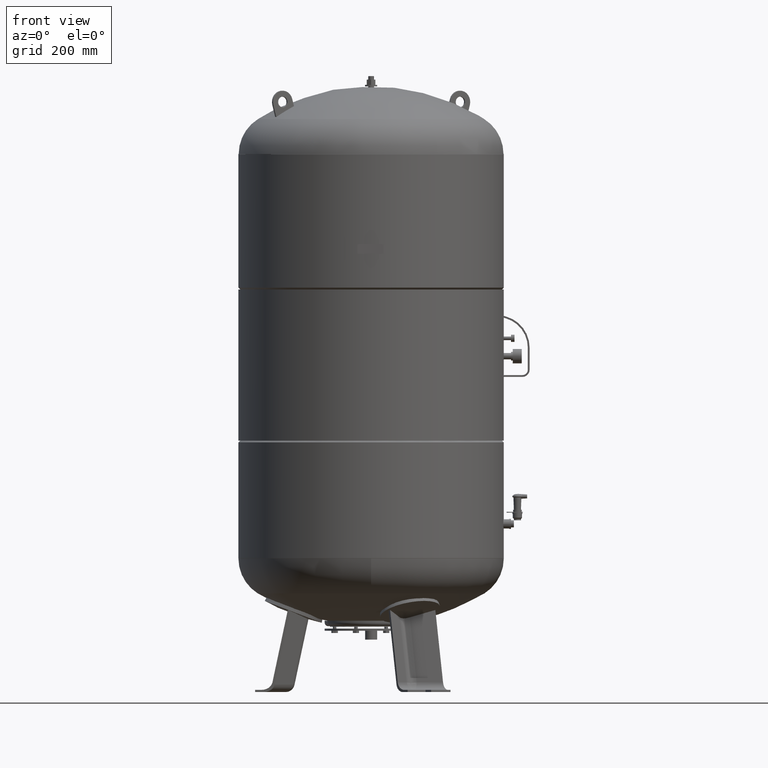
[diagram: clean part render]
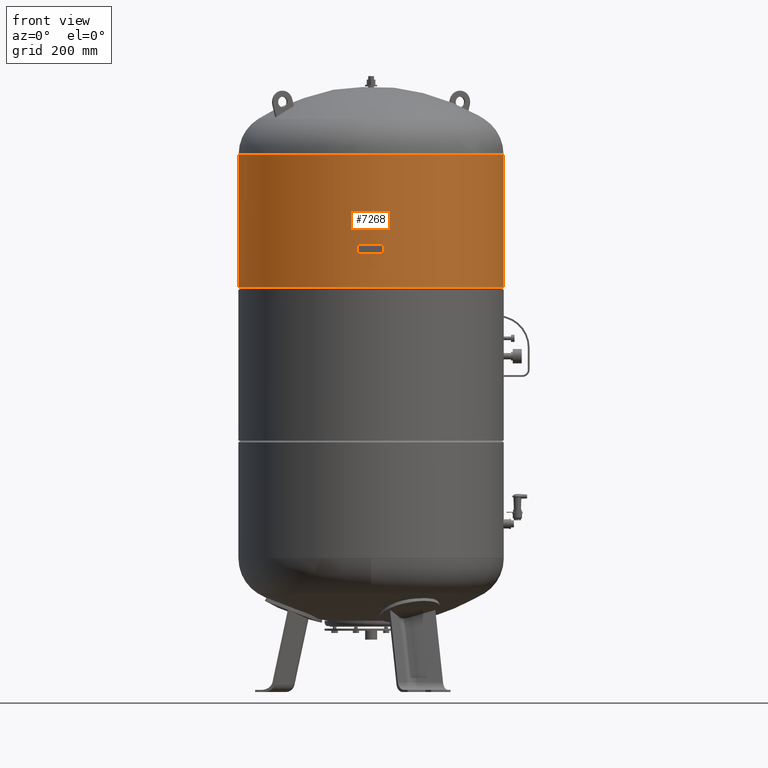
[diagram: same view with one face highlighted and labeled with its STEP entity id]
A machine part, front view. The second image highlights one B-rep face of the part: STEP entity #7268.
In plain terms, the highlighted cylindrical surface (partial cylindrical patch) has radius 370 mm, axis along (0, 0, 1).
Its self-contained STEP definition (entity closure, byte-faithful):
#7227=CARTESIAN_POINT('',(1.117467E-014,0.0,1313.833333333333500));
#7228=DIRECTION('',(2.961484E-017,0.0,1.0));
#7229=DIRECTION('',(1.0,0.0,0.0));
#7230=AXIS2_PLACEMENT_3D('',#7227,#7228,#7229);
#7231=CYLINDRICAL_SURFACE('',#7230,369.999999999999890);
#7232=CARTESIAN_POINT('',(370.0,0.0,1500.0));
#7233=VERTEX_POINT('',#7232);
#7234=CARTESIAN_POINT('',(369.999999999999720,0.0,1127.666666666666500));
#7235=VERTEX_POINT('',#7234);
#7236=CARTESIAN_POINT('',(370.0,0.0,1500.0));
#7237=DIRECTION('',(0.0,0.0,-1.0));
#7238=VECTOR('',#7237,372.333333333333480);
#7239=LINE('',#7236,#7238);
#7240=EDGE_CURVE('',#7233,#7235,#7239,.T.);
#7241=ORIENTED_EDGE('',*,*,#7240,.F.);
#7242=CARTESIAN_POINT('',(-369.999999999999890,-4.531044E-014,1500.0));
#7243=VERTEX_POINT('',#7242);
#7244=CARTESIAN_POINT('',(1.668796E-014,0.0,1500.0));
#7245=DIRECTION('',(0.0,0.0,1.0));
#7246=DIRECTION('',(1.0,0.0,0.0));
#7247=AXIS2_PLACEMENT_3D('',#7244,#7245,#7246);
#7248=CIRCLE('',#7247,370.0);
#7249=EDGE_CURVE('',#7243,#7233,#7248,.T.);
#7250=ORIENTED_EDGE('',*,*,#7249,.F.);
#7251=CARTESIAN_POINT('',(-369.999999999999720,-4.531044E-014,1127.666666666666500));
#7252=VERTEX_POINT('',#7251);
#7253=CARTESIAN_POINT('',(-369.999999999999890,-4.531044E-014,1500.0));
#7254=DIRECTION('',(0.0,0.0,-1.0));
#7255=VECTOR('',#7254,372.333333333333480);
#7256=LINE('',#7253,#7255);
#7257=EDGE_CURVE('',#7243,#7252,#7256,.T.);
#7258=ORIENTED_EDGE('',*,*,#7257,.T.);
#7259=CARTESIAN_POINT('',(5.661371E-015,0.0,1127.666666666666500));
#7260=DIRECTION('',(0.0,0.0,1.0));
#7261=DIRECTION('',(1.0,0.0,0.0));
#7262=AXIS2_PLACEMENT_3D('',#7259,#7260,#7261);
#7263=CIRCLE('',#7262,369.999999999999720);
#7264=EDGE_CURVE('',#7252,#7235,#7263,.T.);
#7265=ORIENTED_EDGE('',*,*,#7264,.T.);
#7266=EDGE_LOOP('',(#7241,#7250,#7258,#7265));
#7267=FACE_OUTER_BOUND('',#7266,.T.);
#7268=ADVANCED_FACE('',(#7267),#7231,.T.);